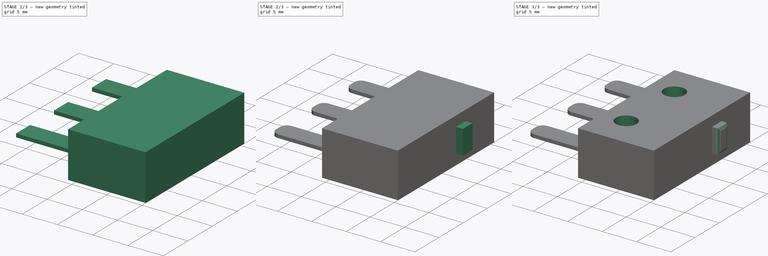
[diagram: build sequence overview — one tinted view per stage of 3, left to right]
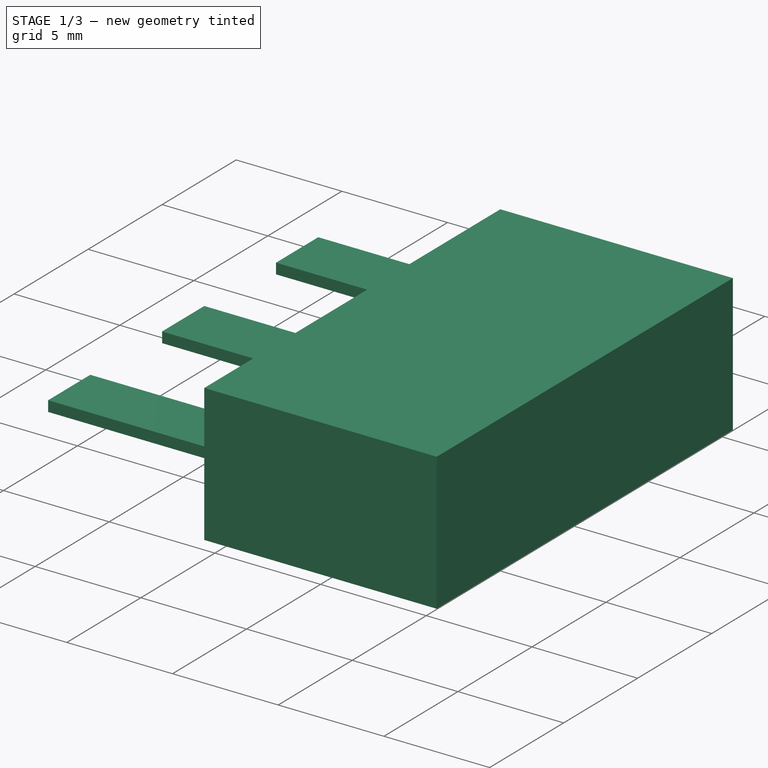
[diagram: stage 1 of 3 — iso view after this stage's code; geometry added in this stage tinted green]
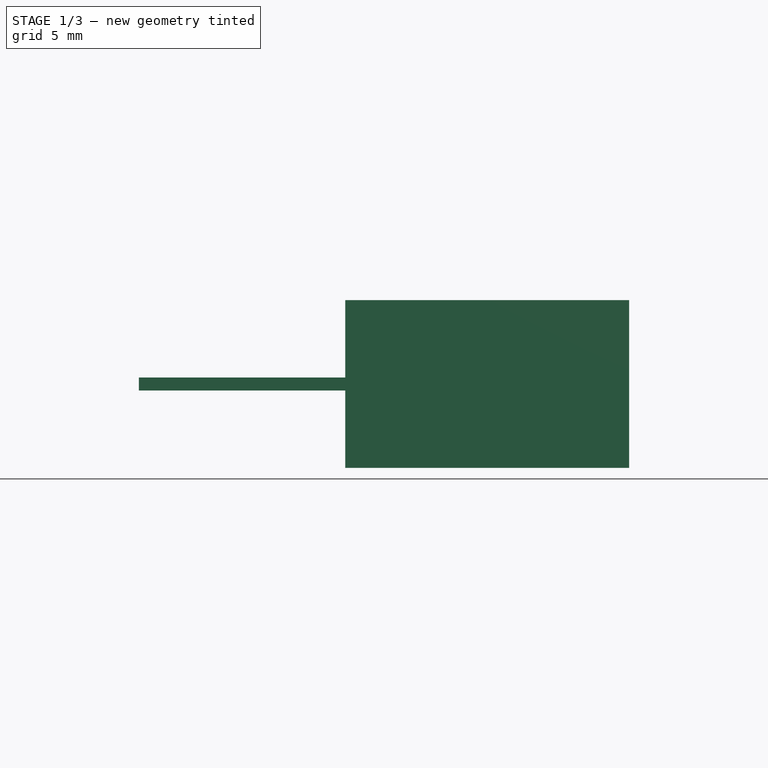
[diagram: stage 1 of 3 — front view after this stage's code; geometry added in this stage tinted green]
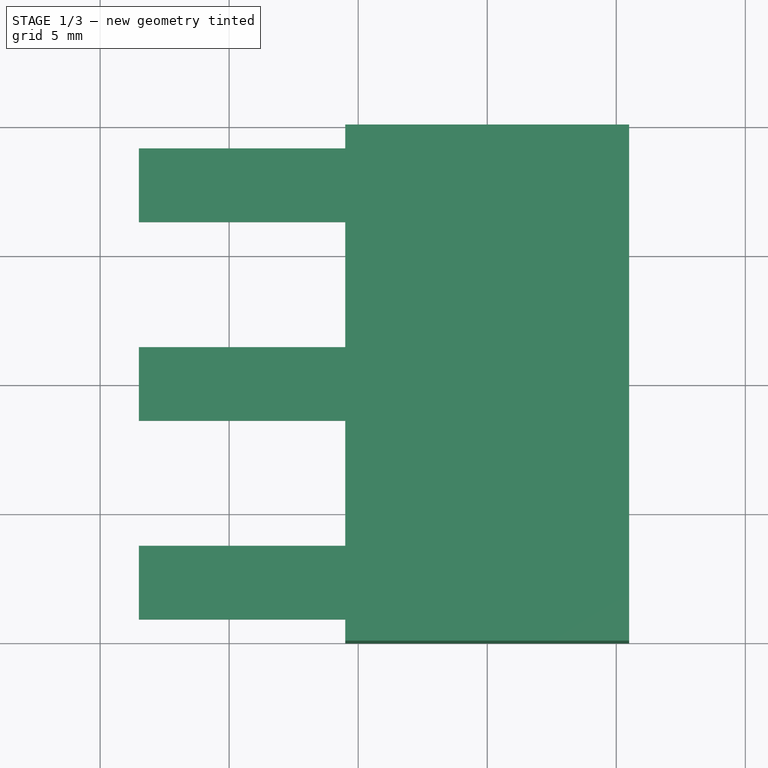
[diagram: stage 1 of 3 — top view after this stage's code; geometry added in this stage tinted green]
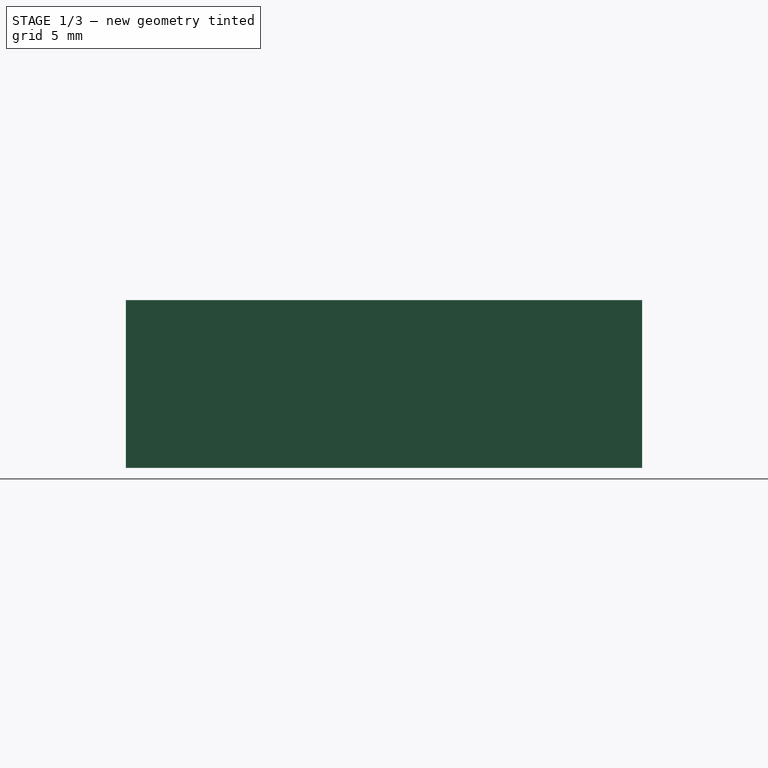
[diagram: stage 1 of 3 — right view after this stage's code; geometry added in this stage tinted green]
FCSTD DOCUMENT  (FreeCAD 0.16R6712 (Git))
Label: switch
License: All rights reserved
LicenseURL: http://en.wikipedia.org/wiki/All_rights_reserved
objects: Sketcher::SketchObject×4, PartDesign::Pad×3, PartDesign::Fillet×2, PartDesign::Pocket×1
note: 14 computed .brp shape members not serialized (recipe doc carries the construction recipe); baked Part::Feature solids carry a one-line shape summary decoded from their .brp

FEATURE [Sketcher::SketchObject] Sketch
  sketch-geometry (8):
    g0: LineSegment StartX=-5.5 StartY=10 StartZ=0 EndX=5.5 EndY=10 EndZ=0
    g1: LineSegment StartX=5.5 StartY=10 StartZ=0 EndX=5.5 EndY=-10 EndZ=0
    g2: LineSegment StartX=5.5 StartY=-10 StartZ=0 EndX=-5.5 EndY=-10 EndZ=0
    g3: LineSegment StartX=-5.5 StartY=-10 StartZ=0 EndX=-5.5 EndY=10 EndZ=0
    g4: LineSegment [constr] StartX=-5.5 StartY=10 StartZ=0 EndX=0 EndY=0 EndZ=0
    g5: LineSegment [constr] StartX=5.5 StartY=10 StartZ=0 EndX=0 EndY=0 EndZ=0
    g6: LineSegment [constr] StartX=5.5 StartY=-10 StartZ=0 EndX=0 EndY=0 EndZ=0
    g7: LineSegment [constr] StartX=-5.5 StartY=-10 StartZ=0 EndX=0 EndY=0 EndZ=0
  constraints (21):
    c: Coincident(g0,g1)
    c: Coincident(g1,g2)
    c: Coincident(g2,g3)
    c: Coincident(g3,g0)
    c: Horizontal(g0)
    c: Horizontal(g2)
    c: Vertical(g1)
    c: Vertical(g3)
    c: DistanceY(g1,g1) = 20
    c: DistanceX(g0,g0) = 11
    c: Coincident(g4,g0)
    c: Coincident(g5,g0)
    c: Coincident(g6,g1)
    c: Coincident(g7,g2)
    c: Coincident(g4,g5)
    c: Coincident(g4,g6)
    c: Coincident(g4,g7)
    c: Coincident(g4,g-1)
    c: Equal(g6,g5)
    c: Equal(g5,g4)
    c: Equal(g4,g7)
FEATURE [PartDesign::Pad] Pad
  Length = 6.5
  Length2 = 100
  Sketch = -> Sketch
  Type = 0
FEATURE [Sketcher::SketchObject] Sketch001
  ExternalGeometry = -> [Pad]
  Placement = pos=(-5.5,0,0) rot=(0.57735,-0.57735,-0.57735;2.0944rad)
  Support = -> Pad [Face4]
  sketch-geometry (18):
    g0: LineSegment StartX=-9.125 StartY=3.5 StartZ=0 EndX=-6.275 EndY=3.5 EndZ=0
    g1: LineSegment StartX=-6.275 StartY=3.5 StartZ=0 EndX=-6.275 EndY=3 EndZ=0
    g2: LineSegment StartX=-6.275 StartY=3 StartZ=0 EndX=-9.125 EndY=3 EndZ=0
    g3: LineSegment StartX=-9.125 StartY=3 StartZ=0 EndX=-9.125 EndY=3.5 EndZ=0
    g4: LineSegment StartX=-1.425 StartY=3.5 StartZ=0 EndX=1.425 EndY=3.5 EndZ=0
    g5: LineSegment StartX=1.425 StartY=3.5 StartZ=0 EndX=1.425 EndY=3 EndZ=0
    g6: LineSegment StartX=1.425 StartY=3 StartZ=0 EndX=-1.425 EndY=3 EndZ=0
    g7: LineSegment StartX=-1.425 StartY=3 StartZ=0 EndX=-1.425 EndY=3.5 EndZ=0
    g8: LineSegment [constr] StartX=-9.125 StartY=3.5 StartZ=0 EndX=-1.425 EndY=3.5 EndZ=0
    g9: LineSegment StartX=6.275 StartY=3.5 StartZ=0 EndX=9.125 EndY=3.5 EndZ=0
    g10: LineSegment StartX=9.125 StartY=3.5 StartZ=0 EndX=9.125 EndY=3 EndZ=0
    g11: LineSegment StartX=9.125 StartY=3 StartZ=0 EndX=6.275 EndY=3 EndZ=0
    g12: LineSegment StartX=6.275 StartY=3 StartZ=0 EndX=6.275 EndY=3.5 EndZ=0
    g13: LineSegment [constr] StartX=-1.425 StartY=3.5 StartZ=0 EndX=6.275 EndY=3.5 EndZ=0
    g14: LineSegment [constr] StartX=-10 StartY=6.5 StartZ=0 EndX=-9.125 EndY=3.5 EndZ=0
    g15: LineSegment [constr] StartX=-9.125 StartY=3 StartZ=0 EndX=-10 EndY=0 EndZ=0
    g16: LineSegment [constr] StartX=10 StartY=6.5 StartZ=0 EndX=9.125 EndY=3.5 EndZ=0
    g17: LineSegment [constr] StartX=10 StartY=0 StartZ=0 EndX=9.125 EndY=3 EndZ=0
  constraints (49):
    c: Coincident(g0,g1)
    c: Coincident(g1,g2)
    c: Coincident(g2,g3)
    c: Coincident(g3,g0)
    c: Horizontal(g0)
    c: Horizontal(g2)
    c: Vertical(g1)
    c: Vertical(g3)
    c: DistanceX(g2,g2) = 2.85
    c: DistanceY(g3,g3) = 0.5
    c: Coincident(g4,g5)
    c: Coincident(g5,g6)
    c: Coincident(g6,g7)
    c: Coincident(g7,g4)
    c: Horizontal(g4)
    c: Horizontal(g6)
    c: Vertical(g5)
    c: Vertical(g7)
    c: Equal(g2,g6) = 2.85
    c: Equal(g3,g7) = 0.5
    c: Coincident(g0,g8)
    c: Coincident(g4,g8)
    c: Angle(g8) = 0
    c: Coincident(g9,g10)
    c: Coincident(g10,g11)
    c: Coincident(g11,g12)
    c: Coincident(g12,g9)
    c: Horizontal(g9)
    c: Horizontal(g11)
    c: Vertical(g10)
    c: Vertical(g12)
    c: Equal(g2,g11) = 2.85
    c: Equal(g3,g12) = 0.5
    c: Coincident(g4,g13)
    c: Coincident(g9,g13)
    c: Equal(g8,g13)
    c: Parallel(g13,g8)
    c: DistanceX(g0,g4) = 4.85
    c: Coincident(g14,g-4)
    c: Coincident(g14,g0)
    c: Coincident(g15,g2)
    c: Coincident(g15,g-4)
    c: Coincident(g16,g-3)
    c: Coincident(g16,g9)
    c: Coincident(g17,g-3)
    c: Coincident(g17,g10)
    c: Equal(g17,g16)
    c: Equal(g16,g14)
    c: Equal(g14,g15)
FEATURE [PartDesign::Pad] Pad001
  Length = 8
  Length2 = 100
  Sketch = -> Sketch001
  Type = 0
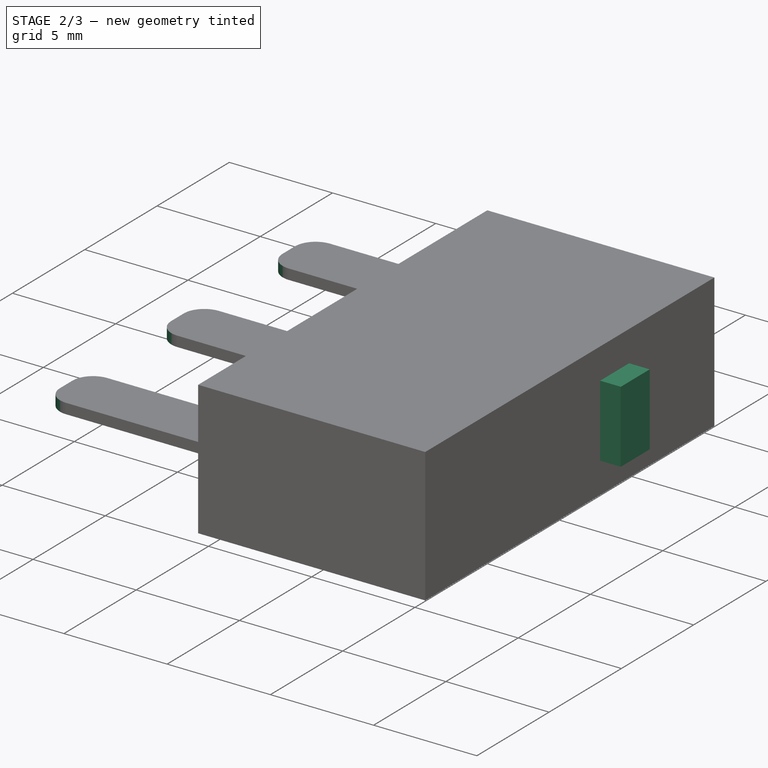
[diagram: stage 2 of 3 — iso view after this stage's code; geometry added in this stage tinted green]
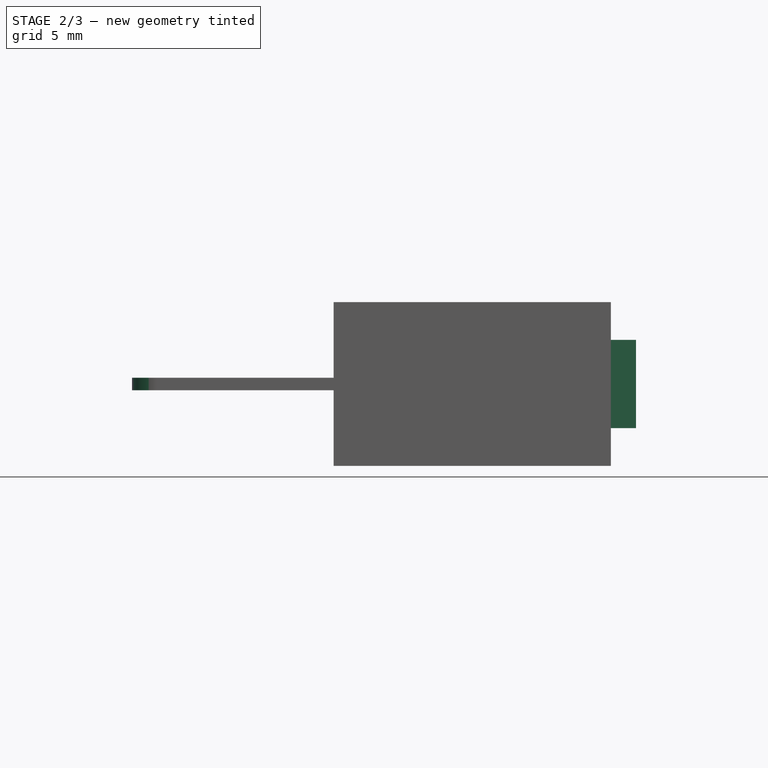
[diagram: stage 2 of 3 — front view after this stage's code; geometry added in this stage tinted green]
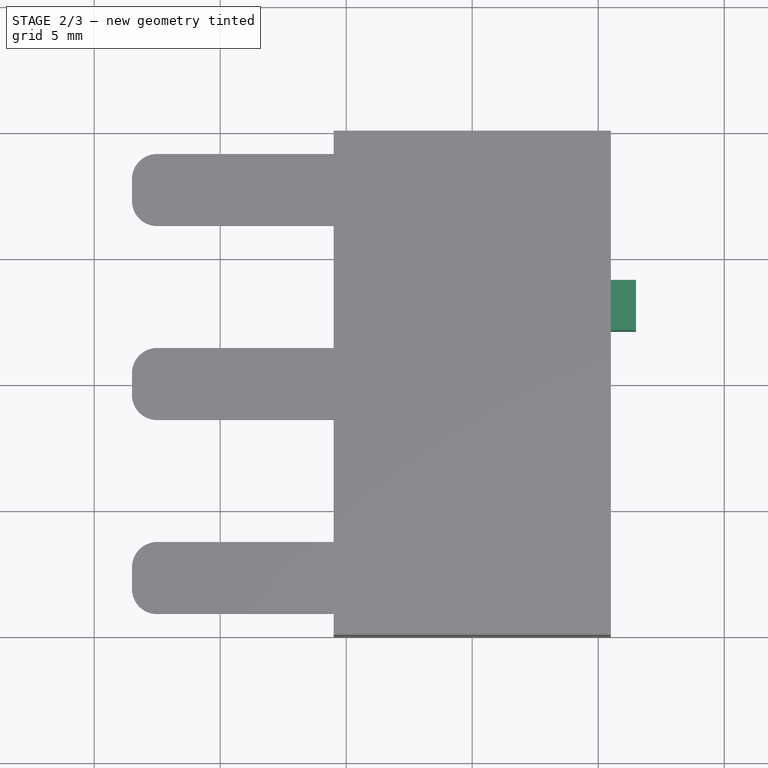
[diagram: stage 2 of 3 — top view after this stage's code; geometry added in this stage tinted green]
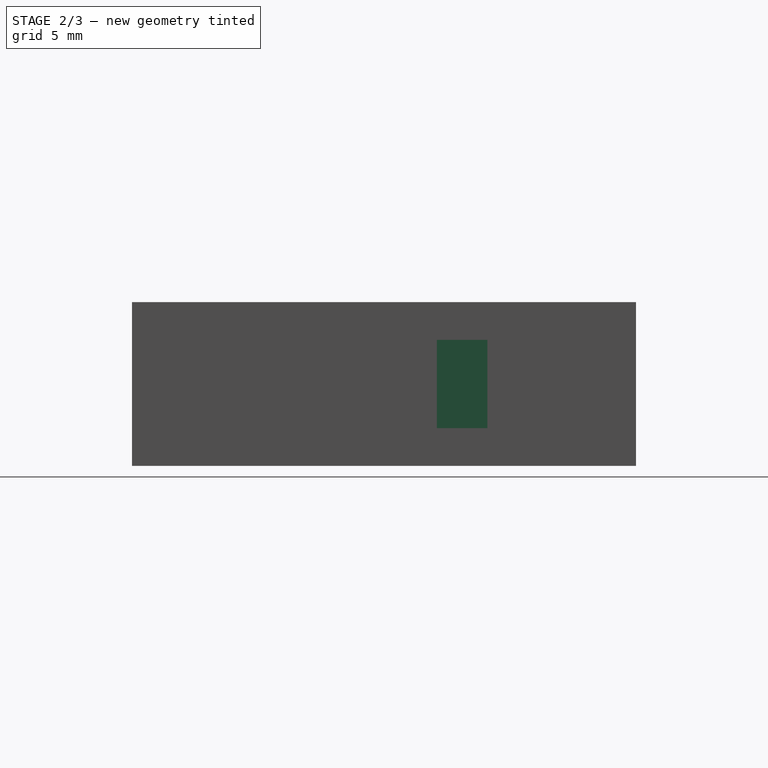
[diagram: stage 2 of 3 — right view after this stage's code; geometry added in this stage tinted green]
FEATURE [PartDesign::Fillet] Fillet
  Base = -> Pad001 [Edge29,Edge32,Edge34,Edge39,Edge48,Edge45]
  Radius = 1
FEATURE [Sketcher::SketchObject] Sketch002
  ExternalGeometry = -> [Fillet]
  Placement = pos=(5.5,0,0) rot=(0.57735,0.57735,0.57735;2.0944rad)
  Support = -> Fillet [Face21]
  sketch-geometry (10):
    g0: LineSegment StartX=2.1 StartY=5 StartZ=0 EndX=4.1 EndY=5 EndZ=0
    g1: LineSegment StartX=4.1 StartY=5 StartZ=0 EndX=4.1 EndY=1.5 EndZ=0
    g2: LineSegment StartX=4.1 StartY=1.5 StartZ=0 EndX=2.1 EndY=1.5 EndZ=0
    g3: LineSegment StartX=2.1 StartY=1.5 StartZ=0 EndX=2.1 EndY=5 EndZ=0
    g4: LineSegment [constr] StartX=4.1 StartY=5 StartZ=0 EndX=3.1 EndY=3.25 EndZ=0
    g5: LineSegment [constr] StartX=2.1 StartY=5 StartZ=0 EndX=3.1 EndY=3.25 EndZ=0
    g6: LineSegment [constr] StartX=2.1 StartY=1.5 StartZ=0 EndX=3.1 EndY=3.25 EndZ=0
    g7: LineSegment [constr] StartX=4.1 StartY=1.5 StartZ=0 EndX=3.1 EndY=3.25 EndZ=0
    g8: LineSegment [constr] StartX=10 StartY=6.5 StartZ=0 EndX=4.1 EndY=5 EndZ=0
    g9: LineSegment [constr] StartX=10 StartY=0 StartZ=0 EndX=4.1 EndY=1.5 EndZ=0
  constraints (26):
    c: Coincident(g0,g1)
    c: Coincident(g1,g2)
    c: Coincident(g2,g3)
    c: Coincident(g3,g0)
    c: Horizontal(g0)
    c: Horizontal(g2)
    c: Vertical(g1)
    c: Vertical(g3)
    c: Coincident(g4,g0)
    c: Coincident(g5,g0)
    c: Coincident(g6,g2)
    c: Coincident(g7,g1)
    c: Coincident(g4,g5)
    c: Coincident(g4,g6)
    c: Coincident(g4,g7)
    c: Equal(g7,g4)
    c: Equal(g4,g5)
    c: Equal(g5,g6)
    c: Coincident(g8,g-3)
    c: Coincident(g8,g0)
    c: Coincident(g9,g-3)
    c: Coincident(g1,g9)
    c: Equal(g8,g9)
    c: DistanceY(g1,g1) = 3.5
    c: DistanceX(g0,g0) = 2
    c: DistanceX(g4,g8) = 6.9
FEATURE [PartDesign::Pad] Pad002
  Length = 1
  Length2 = 100
  Sketch = -> Sketch002
  Type = 0
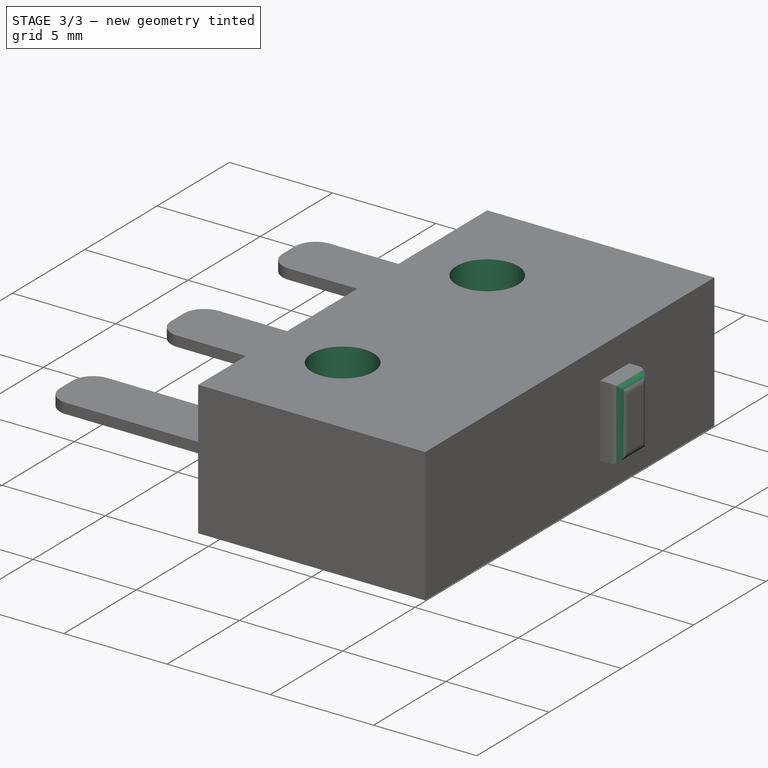
[diagram: stage 3 of 3 — iso view after this stage's code; geometry added in this stage tinted green]
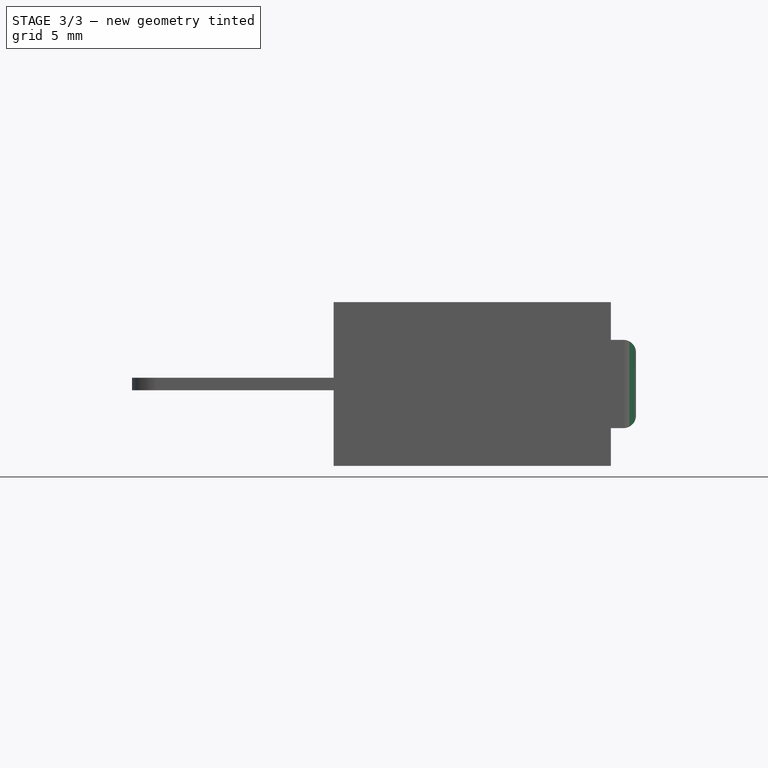
[diagram: stage 3 of 3 — front view after this stage's code; geometry added in this stage tinted green]
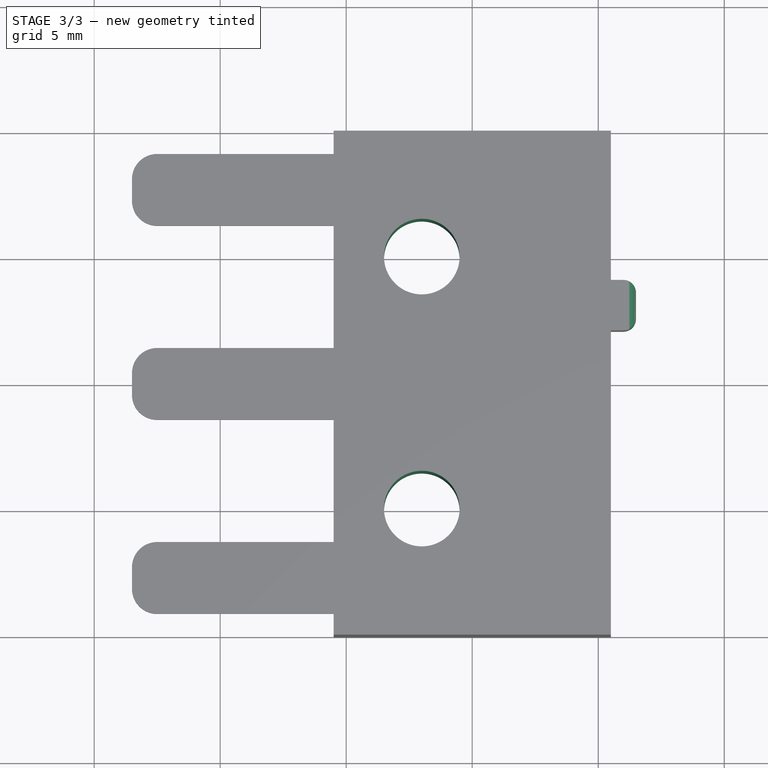
[diagram: stage 3 of 3 — top view after this stage's code; geometry added in this stage tinted green]
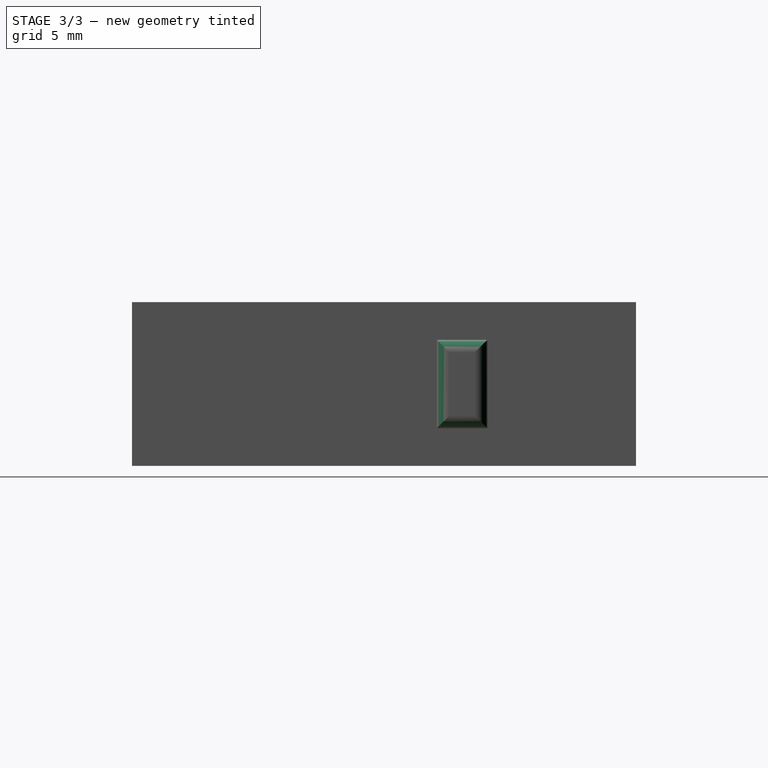
[diagram: stage 3 of 3 — right view after this stage's code; geometry added in this stage tinted green]
FEATURE [PartDesign::Fillet] Fillet001
  Base = -> Pad002 [Edge1,Edge2,Edge3,Edge4]
  Radius = 0.5
FEATURE [Sketcher::SketchObject] Sketch003
  ExternalGeometry = -> [Fillet001]
  Placement = pos=(0,0,0) rot=(1,0,0;3.14159rad)
  Support = -> Fillet001 [Face12]
  sketch-geometry (4):
    g0: LineSegment [constr] StartX=-2 StartY=5 StartZ=0 EndX=-2 EndY=0 EndZ=0
    g1: LineSegment [constr] StartX=-2 StartY=0 StartZ=0 EndX=-2 EndY=-5 EndZ=0
    g2: Circle CenterX=-2 CenterY=5 CenterZ=0 NormalX=0 NormalY=0 NormalZ=1 Radius=1.5
    g3: Circle CenterX=-2 CenterY=-5 CenterZ=0 NormalX=0 NormalY=0 NormalZ=1 Radius=1.5
  constraints (11):
    c: Vertical(g0)
    c: Coincident(g1,g0)
    c: Vertical(g1)
    c: Equal(g1,g0)
    c: Coincident(g2,g0)
    c: Coincident(g3,g1)
    c: Equal(g3,g2)
    c: Radius(g3) = 1.5
    c: PointOnObject(g0,g-1)
    c: DistanceY(g0,g0) = 5
    c: DistanceX(g0,g-3) = 7.5
FEATURE [PartDesign::Pocket] Pocket
  Length = 5
  Sketch = -> Sketch003
  Type = 1
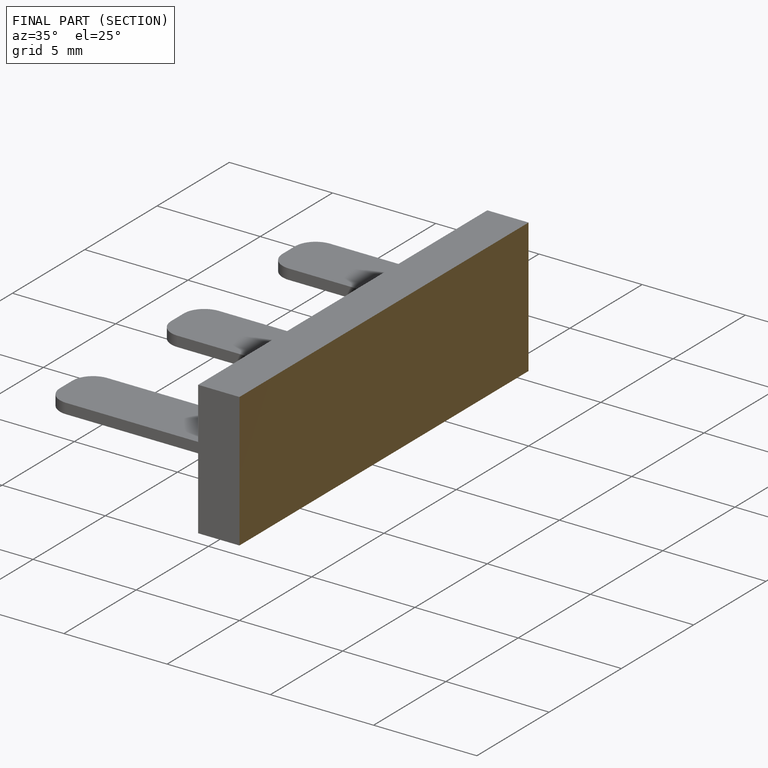
[diagram: finished part — half-section view (interior)]
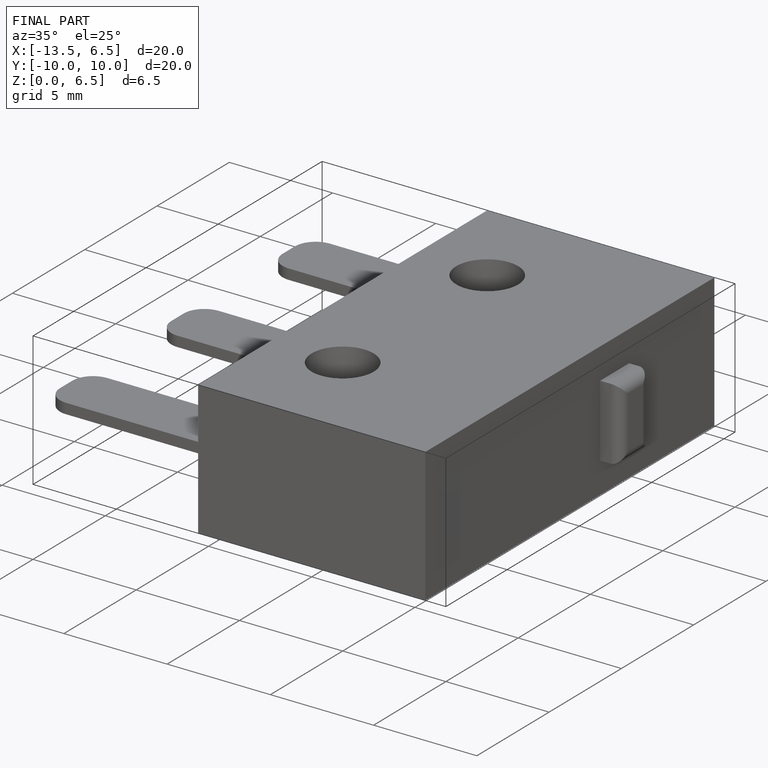
[diagram: finished part — iso view with bounding-box wireframe]
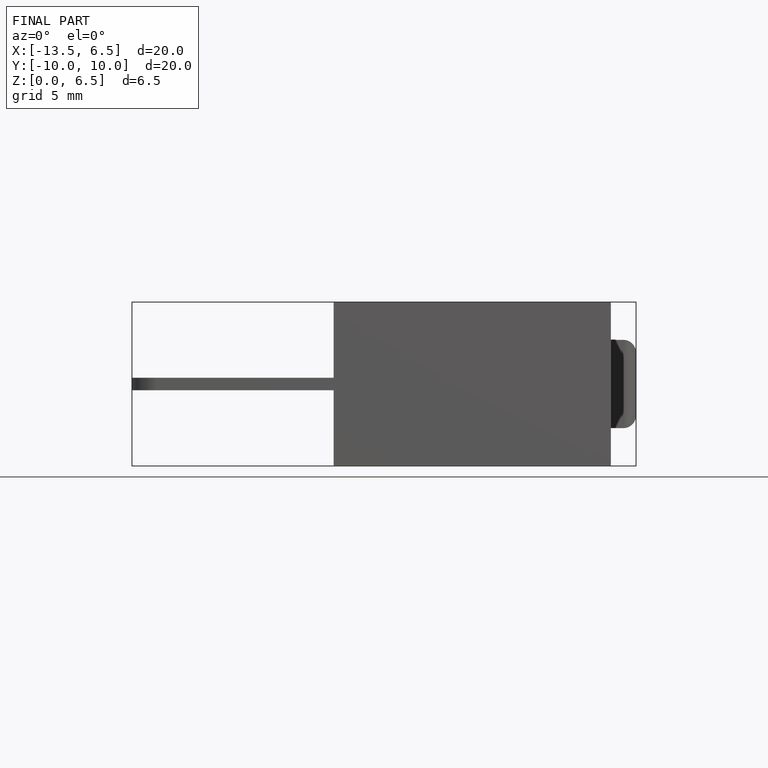
[diagram: finished part — front view with bounding-box wireframe]
